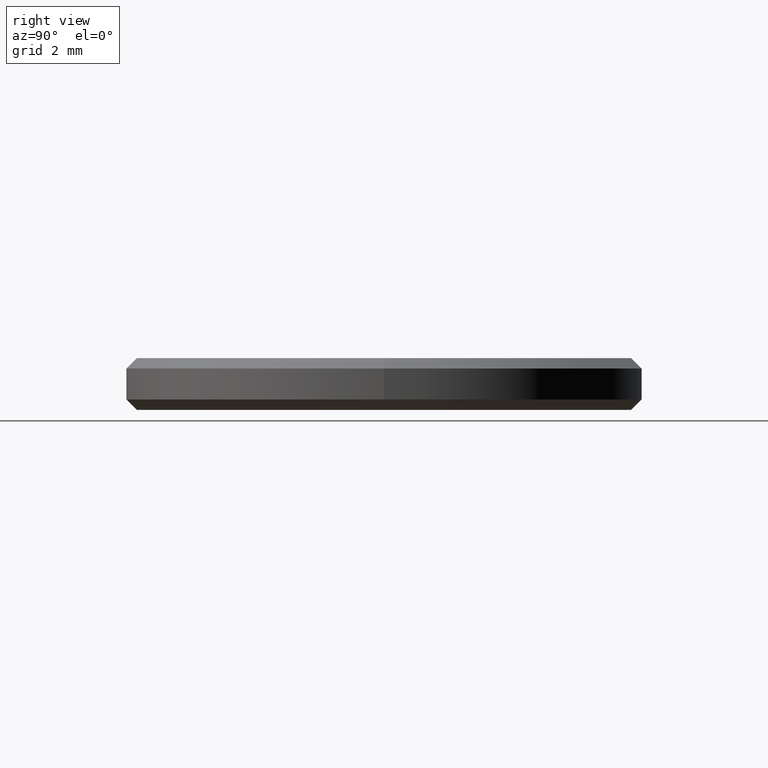
[diagram: clean part render]
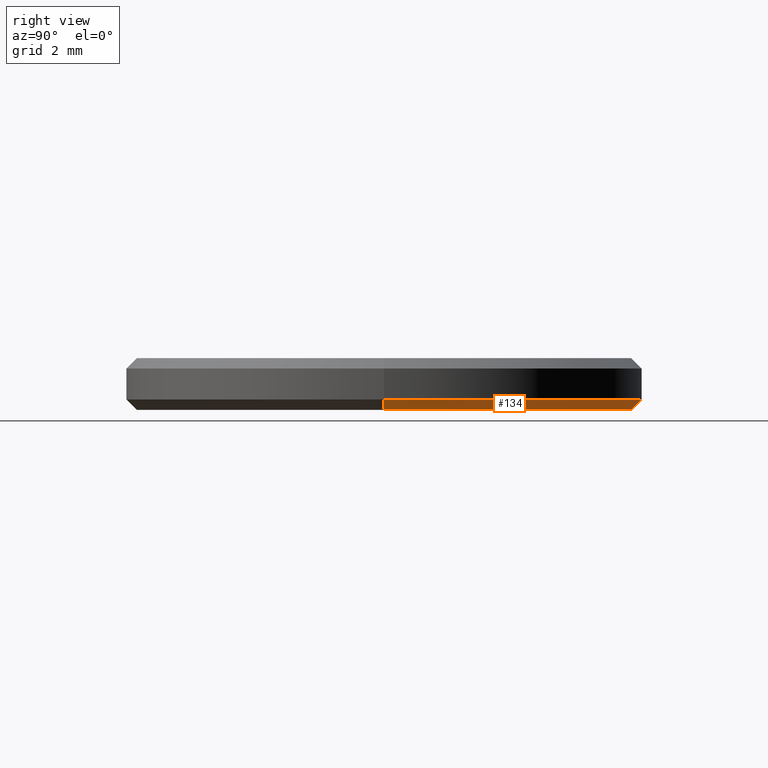
[diagram: same view with one face highlighted and labeled with its STEP entity id]
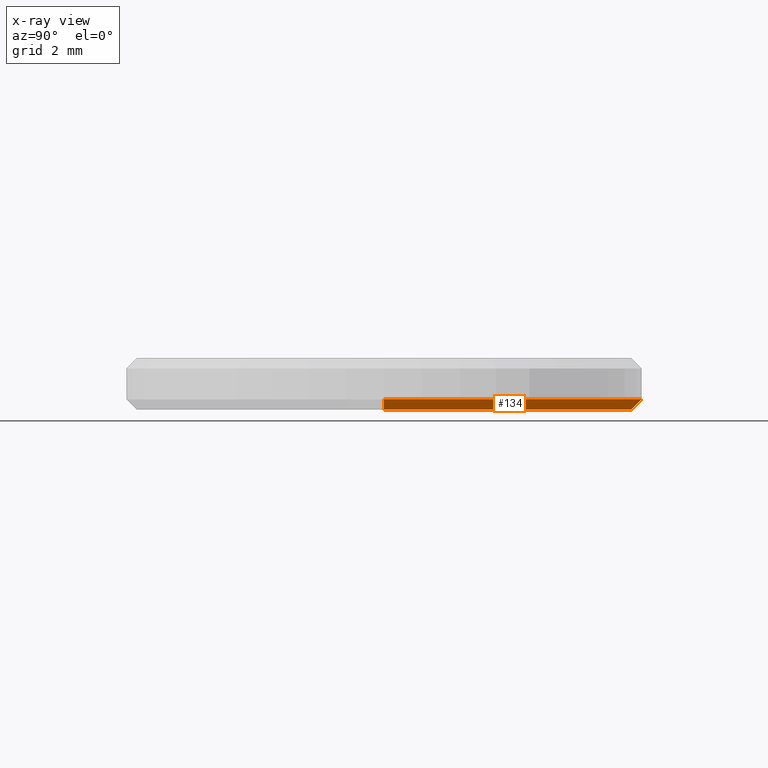
[diagram: x-ray of the same camera — body ghosted, the highlighted face saturated]
A machine part, right view. The second image highlights one B-rep face of the part: STEP entity #134.
The next image is the same camera in x-ray: the body ghosted, the highlighted face saturated — about 0% of this face is hidden behind the body in this view.
In plain terms, the highlighted conical surface has half-angle 45 deg.
Its self-contained STEP definition (entity closure, byte-faithful):
#12 = VERTEX_POINT ( 'NONE', #229 ) ;
#14 = ORIENTED_EDGE ( 'NONE', *, *, #40, .F. ) ;
#21 = DIRECTION ( 'NONE',  ( -0.000000000000000000, -0.000000000000000000, -1.000000000000000000 ) ) ;
#23 = LINE ( 'NONE', #226, #158 ) ;
#24 = CONICAL_SURFACE ( 'NONE', #193, 5.000000000000000000, 0.7853981633974503884 ) ;
#29 = VERTEX_POINT ( 'NONE', #228 ) ;
#40 = EDGE_CURVE ( 'NONE', #123, #12, #223, .T. ) ;
#43 = CARTESIAN_POINT ( 'NONE',  ( 5.000000000000000000, 0.000000000000000000, 0.1999999999999996503 ) ) ;
#52 = AXIS2_PLACEMENT_3D ( 'NONE', #181, #232, #233 ) ;
#54 = CARTESIAN_POINT ( 'NONE',  ( 0.000000000000000000, 0.000000000000000000, 0.000000000000000000 ) ) ;
#78 = CARTESIAN_POINT ( 'NONE',  ( 0.000000000000000000, 0.000000000000000000, 0.1999999999999996503 ) ) ;
#81 = FACE_OUTER_BOUND ( 'NONE', #120, .T. ) ;
#88 = ORIENTED_EDGE ( 'NONE', *, *, #172, .F. ) ;
#109 = DIRECTION ( 'NONE',  ( 1.000000000000000000, 0.000000000000000000, 0.000000000000000000 ) ) ;
#120 = EDGE_LOOP ( 'NONE', ( #14, #165, #88, #184 ) ) ;
#123 = VERTEX_POINT ( 'NONE', #213 ) ;
#134 = ADVANCED_FACE ( 'NONE', ( #81 ), #24, .T. ) ;
#135 = CARTESIAN_POINT ( 'NONE',  ( 5.000000000000000000, 6.123233995736766282E-16, 0.1999999999999996503 ) ) ;
#143 = EDGE_CURVE ( 'NONE', #123, #29, #23, .T. ) ;
#144 = VECTOR ( 'NONE', #214, 1000.000000000000000 ) ;
#149 = DIRECTION ( 'NONE',  ( -0.000000000000000000, -0.000000000000000000, 1.000000000000000000 ) ) ;
#158 = VECTOR ( 'NONE', #197, 1000.000000000000000 ) ;
#165 = ORIENTED_EDGE ( 'NONE', *, *, #143, .T. ) ;
#172 = EDGE_CURVE ( 'NONE', #220, #29, #207, .T. ) ;
#179 = AXIS2_PLACEMENT_3D ( 'NONE', #54, #21, #225 ) ;
#181 = CARTESIAN_POINT ( 'NONE',  ( 0.000000000000000000, 0.000000000000000000, 0.1999999999999996503 ) ) ;
#183 = EDGE_CURVE ( 'NONE', #12, #220, #236, .T. ) ;
#184 = ORIENTED_EDGE ( 'NONE', *, *, #183, .F. ) ;
#193 = AXIS2_PLACEMENT_3D ( 'NONE', #78, #149, #109 ) ;
#197 = DIRECTION ( 'NONE',  ( -0.7071067811865490160, 8.659560562354950115E-17, 0.7071067811865459074 ) ) ;
#207 = CIRCLE ( 'NONE', #52, 5.000000000000000000 ) ;
#213 = CARTESIAN_POINT ( 'NONE',  ( -4.799999999999999822, 6.000769315822029754E-16, 0.000000000000000000 ) ) ;
#214 = DIRECTION ( 'NONE',  ( 0.7071067811865490160, 0.000000000000000000, 0.7071067811865459074 ) ) ;
#220 = VERTEX_POINT ( 'NONE', #135 ) ;
#223 = CIRCLE ( 'NONE', #179, 4.799999999999999822 ) ;
#225 = DIRECTION ( 'NONE',  ( 1.000000000000000000, 0.000000000000000000, 0.000000000000000000 ) ) ;
#226 = CARTESIAN_POINT ( 'NONE',  ( -5.000000000000000000, 6.123233995736765296E-16, 0.1999999999999996503 ) ) ;
#228 = CARTESIAN_POINT ( 'NONE',  ( -5.000000000000000000, 0.000000000000000000, 0.1999999999999996503 ) ) ;
#229 = CARTESIAN_POINT ( 'NONE',  ( 4.799999999999999822, 0.000000000000000000, 0.000000000000000000 ) ) ;
#232 = DIRECTION ( 'NONE',  ( -0.000000000000000000, -0.000000000000000000, 1.000000000000000000 ) ) ;
#233 = DIRECTION ( 'NONE',  ( 1.000000000000000000, 0.000000000000000000, 0.000000000000000000 ) ) ;
#236 = LINE ( 'NONE', #43, #144 ) ;